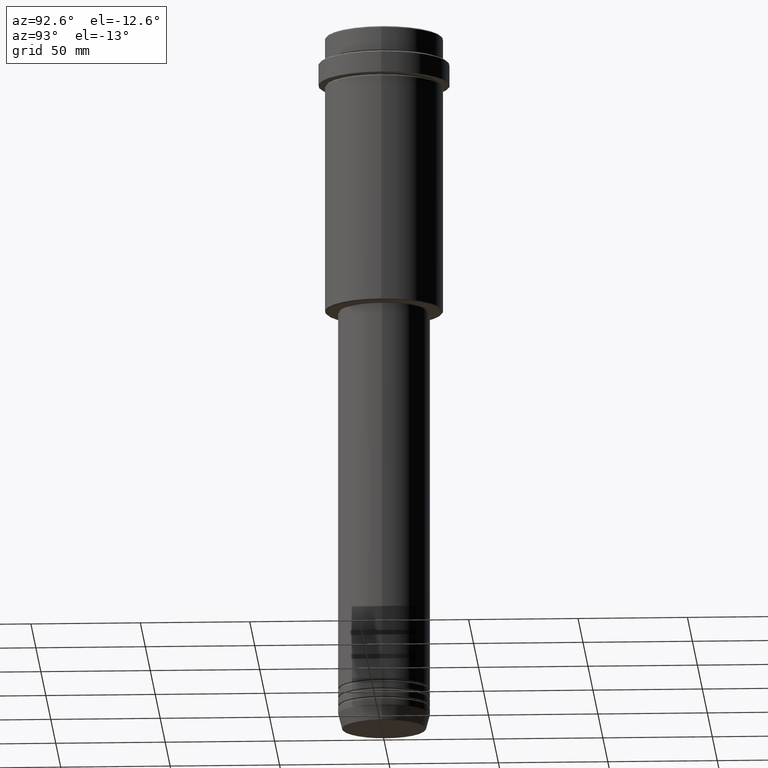
[diagram: clean part render]
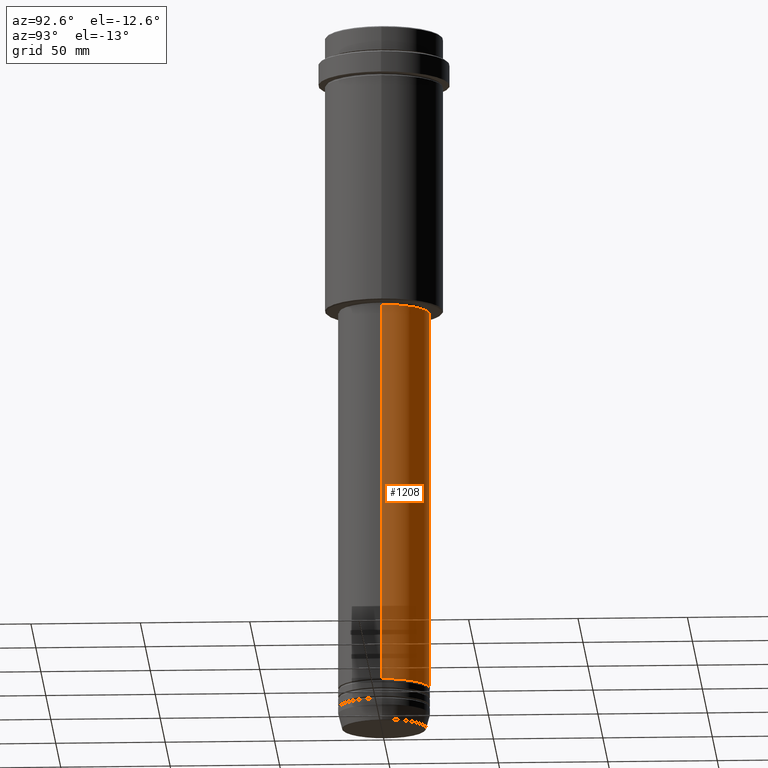
[diagram: same view with one face highlighted and labeled with its STEP entity id]
A machine part, auxiliary view. The second image highlights one B-rep face of the part: STEP entity #1208.
In plain terms, the highlighted cylindrical surface (partial cylindrical patch) has radius 21 mm, axis along (-0, -0, 1).
Its self-contained STEP definition (entity closure, byte-faithful):
#15 = CARTESIAN_POINT ( 'NONE',  ( 0.000000000000000000, 0.000000000000000000, -128.9999999999999147 ) ) ;
#57 = EDGE_CURVE ( 'NONE', #596, #535, #1384, .T. ) ;
#93 = ORIENTED_EDGE ( 'NONE', *, *, #1056, .F. ) ;
#230 = DIRECTION ( 'NONE',  ( 1.000000000000000000, 0.000000000000000000, 0.000000000000000000 ) ) ;
#344 = CARTESIAN_POINT ( 'NONE',  ( 21.00000000000000000, 0.000000000000000000, -303.9999999999998863 ) ) ;
#372 = AXIS2_PLACEMENT_3D ( 'NONE', #1252, #474, #1120 ) ;
#386 = VERTEX_POINT ( 'NONE', #621 ) ;
#455 = ORIENTED_EDGE ( 'NONE', *, *, #602, .T. ) ;
#474 = DIRECTION ( 'NONE',  ( -0.000000000000000000, -0.000000000000000000, 1.000000000000000000 ) ) ;
#481 = DIRECTION ( 'NONE',  ( -0.000000000000000000, -0.000000000000000000, 1.000000000000000000 ) ) ;
#506 = EDGE_CURVE ( 'NONE', #596, #386, #765, .T. ) ;
#532 = AXIS2_PLACEMENT_3D ( 'NONE', #1213, #481, #1004 ) ;
#535 = VERTEX_POINT ( 'NONE', #910 ) ;
#542 = DIRECTION ( 'NONE',  ( -0.000000000000000000, -0.000000000000000000, 1.000000000000000000 ) ) ;
#555 = VECTOR ( 'NONE', #774, 1000.000000000000000 ) ;
#567 = EDGE_LOOP ( 'NONE', ( #883, #455, #93, #1221 ) ) ;
#583 = VERTEX_POINT ( 'NONE', #1284 ) ;
#585 = FACE_OUTER_BOUND ( 'NONE', #567, .T. ) ;
#596 = VERTEX_POINT ( 'NONE', #344 ) ;
#602 = EDGE_CURVE ( 'NONE', #535, #583, #987, .T. ) ;
#621 = CARTESIAN_POINT ( 'NONE',  ( 20.99999999999999645, 0.000000000000000000, -128.9999999999999147 ) ) ;
#765 = LINE ( 'NONE', #869, #1079 ) ;
#774 = DIRECTION ( 'NONE',  ( -0.000000000000000000, -0.000000000000000000, 1.000000000000000000 ) ) ;
#869 = CARTESIAN_POINT ( 'NONE',  ( 20.99999999999999645, 0.000000000000000000, 0.000000000000000000 ) ) ;
#883 = ORIENTED_EDGE ( 'NONE', *, *, #57, .T. ) ;
#910 = CARTESIAN_POINT ( 'NONE',  ( -21.00000000000000000, 2.571758278209441661E-15, -303.9999999999998863 ) ) ;
#924 = CYLINDRICAL_SURFACE ( 'NONE', #532, 20.99999999999999645 ) ;
#987 = LINE ( 'NONE', #1210, #555 ) ;
#989 = CIRCLE ( 'NONE', #1364, 20.99999999999999645 ) ;
#1004 = DIRECTION ( 'NONE',  ( 1.000000000000000000, 0.000000000000000000, 0.000000000000000000 ) ) ;
#1056 = EDGE_CURVE ( 'NONE', #386, #583, #989, .T. ) ;
#1079 = VECTOR ( 'NONE', #1222, 1000.000000000000000 ) ;
#1120 = DIRECTION ( 'NONE',  ( 1.000000000000000000, 0.000000000000000000, 0.000000000000000000 ) ) ;
#1208 = ADVANCED_FACE ( 'NONE', ( #585 ), #924, .T. ) ;
#1210 = CARTESIAN_POINT ( 'NONE',  ( -20.99999999999999645, 2.571758278209441267E-15, 0.000000000000000000 ) ) ;
#1213 = CARTESIAN_POINT ( 'NONE',  ( 0.000000000000000000, 0.000000000000000000, 0.000000000000000000 ) ) ;
#1221 = ORIENTED_EDGE ( 'NONE', *, *, #506, .F. ) ;
#1222 = DIRECTION ( 'NONE',  ( -0.000000000000000000, -0.000000000000000000, 1.000000000000000000 ) ) ;
#1252 = CARTESIAN_POINT ( 'NONE',  ( 0.000000000000000000, 0.000000000000000000, -303.9999999999998863 ) ) ;
#1284 = CARTESIAN_POINT ( 'NONE',  ( -20.99999999999999645, 2.571758278209441267E-15, -128.9999999999999147 ) ) ;
#1364 = AXIS2_PLACEMENT_3D ( 'NONE', #15, #542, #230 ) ;
#1384 = CIRCLE ( 'NONE', #372, 21.00000000000000000 ) ;